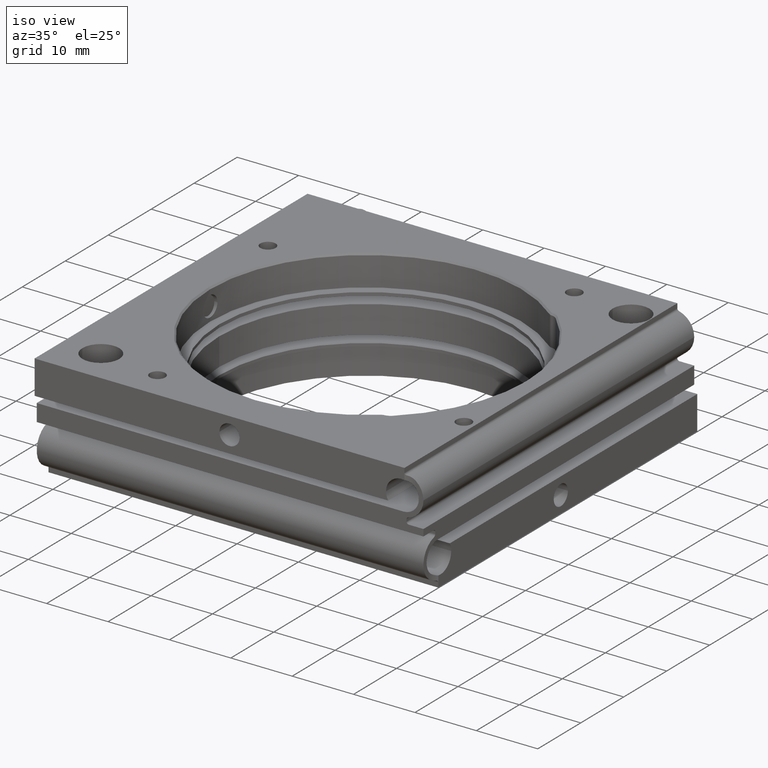
[diagram: clean part render]
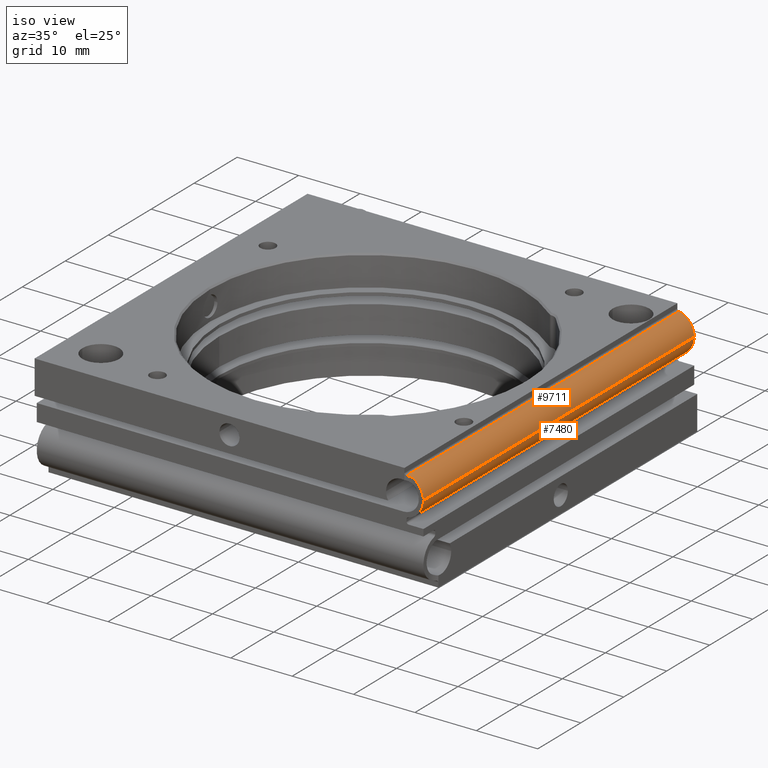
[diagram: same view with one multi-face feature highlighted, each face labeled with its STEP entity id]
A machine part, iso view. The highlighted faces form ONE feature: a constant-radius fillet chain: 2 tangent blend faces with common blend radius 3.25 mm. The faces share edges in the B-rep.
Their STEP definitions:
[1] entity #7480 (Cylinder):
#310 = DIRECTION ( 'NONE',  ( -1.000000000000000000, 1.334402673828313339E-16, 0.000000000000000000 ) ) ;
#797 = DIRECTION ( 'NONE',  ( 1.000000000000000000, -0.000000000000000000, -6.829619984160658046E-17 ) ) ;
#1029 = AXIS2_PLACEMENT_3D ( 'NONE', #5392, #310, #3337 ) ;
#1121 = CYLINDRICAL_SURFACE ( 'NONE', #11739, 3.249999999999999556 ) ;
#1199 = CARTESIAN_POINT ( 'NONE',  ( 31.24999999999998579, 1.591890292413144836, -28.76736111111112493 ) ) ;
#1591 = EDGE_CURVE ( 'NONE', #5785, #9956, #4426, .T. ) ;
#1854 = CARTESIAN_POINT ( 'NONE',  ( 31.24999999999998579, 4.749999999999999112, -31.25000000000001421 ) ) ;
#2014 = LINE ( 'NONE', #6143, #13291 ) ;
#2116 = AXIS2_PLACEMENT_3D ( 'NONE', #7124, #3935, #5986 ) ;
#2300 = CARTESIAN_POINT ( 'NONE',  ( -31.75000000000000000, 1.591890292413145724, -28.76736111111112493 ) ) ;
#2747 = CIRCLE ( 'NONE', #1029, 3.250000000000000000 ) ;
#3203 = VERTEX_POINT ( 'NONE', #8973 ) ;
#3337 = DIRECTION ( 'NONE',  ( 0.000000000000000000, -1.000000000000000000, 0.000000000000000000 ) ) ;
#3935 = DIRECTION ( 'NONE',  ( -1.000000000000000000, -0.000000000000000000, 6.829619984160658046E-17 ) ) ;
#4426 = LINE ( 'NONE', #9751, #10223 ) ;
#5123 = ORIENTED_EDGE ( 'NONE', *, *, #10150, .T. ) ;
#5392 = CARTESIAN_POINT ( 'NONE',  ( 31.24999999999998579, 4.749999999999999112, -28.00000000000001776 ) ) ;
#5785 = VERTEX_POINT ( 'NONE', #1199 ) ;
#5986 = DIRECTION ( 'NONE',  ( 0.000000000000000000, 0.000000000000000000, -1.000000000000000000 ) ) ;
#6076 = FACE_OUTER_BOUND ( 'NONE', #8925, .T. ) ;
#6143 = CARTESIAN_POINT ( 'NONE',  ( -31.75000000000000000, 4.749999999999999112, -31.25000000000001421 ) ) ;
#7124 = CARTESIAN_POINT ( 'NONE',  ( -31.75000000000000000, 4.749999999999999112, -28.00000000000001421 ) ) ;
#7480 = ADVANCED_FACE ( 'NONE', ( #6076 ), #1121, .T. ) ;
#8476 = CARTESIAN_POINT ( 'NONE',  ( -31.75000000000000000, 4.749999999999999112, -28.00000000000001421 ) ) ;
#8498 = ORIENTED_EDGE ( 'NONE', *, *, #8749, .T. ) ;
#8749 = EDGE_CURVE ( 'NONE', #3203, #12205, #2014, .T. ) ;
#8925 = EDGE_LOOP ( 'NONE', ( #9834, #8498, #5123, #11639 ) ) ;
#8973 = CARTESIAN_POINT ( 'NONE',  ( -31.75000000000000000, 4.749999999999999112, -31.25000000000001421 ) ) ;
#9542 = DIRECTION ( 'NONE',  ( 1.000000000000000000, -0.000000000000000000, -6.829619984160658046E-17 ) ) ;
#9751 = CARTESIAN_POINT ( 'NONE',  ( -31.75000000000000000, 1.591890292413145280, -28.76736111111112493 ) ) ;
#9815 = DIRECTION ( 'NONE',  ( -1.000000000000000000, 0.000000000000000000, 6.829619984160658046E-17 ) ) ;
#9834 = ORIENTED_EDGE ( 'NONE', *, *, #12182, .F. ) ;
#9956 = VERTEX_POINT ( 'NONE', #2300 ) ;
#10150 = EDGE_CURVE ( 'NONE', #12205, #5785, #2747, .T. ) ;
#10223 = VECTOR ( 'NONE', #9815, 1000.000000000000000 ) ;
#11639 = ORIENTED_EDGE ( 'NONE', *, *, #1591, .T. ) ;
#11739 = AXIS2_PLACEMENT_3D ( 'NONE', #8476, #9542, #12584 ) ;
#12182 = EDGE_CURVE ( 'NONE', #3203, #9956, #13108, .T. ) ;
#12205 = VERTEX_POINT ( 'NONE', #1854 ) ;
#12584 = DIRECTION ( 'NONE',  ( 0.000000000000000000, 0.000000000000000000, -1.000000000000000000 ) ) ;
#13108 = CIRCLE ( 'NONE', #2116, 3.249999999999999556 ) ;
#13291 = VECTOR ( 'NONE', #797, 1000.000000000000000 ) ;
[2] entity #9711 (Cylinder):
#167 = ORIENTED_EDGE ( 'NONE', *, *, #8749, .F. ) ;
#797 = DIRECTION ( 'NONE',  ( 1.000000000000000000, -0.000000000000000000, -6.829619984160658046E-17 ) ) ;
#1001 = ORIENTED_EDGE ( 'NONE', *, *, #6972, .T. ) ;
#1013 = CARTESIAN_POINT ( 'NONE',  ( 31.24999999999998579, 4.749999999999999112, -28.00000000000001776 ) ) ;
#1072 = CARTESIAN_POINT ( 'NONE',  ( 31.25000000000000000, 7.311737691489897273, -30.00000000000002132 ) ) ;
#1441 = DIRECTION ( 'NONE',  ( 1.000000000000000000, -0.000000000000000000, -6.829619984160658046E-17 ) ) ;
#1711 = B_SPLINE_CURVE_WITH_KNOTS ( 'NONE', 3,
 ( #10204, #12977, #3863, #7122, #12172, #4805 ),
 .UNSPECIFIED., .F., .F.,
 ( 4, 2, 4 ),
 ( 0.000000000000000000, 0.0007118922461806830373, 0.001423784492361366075 ),
 .UNSPECIFIED. ) ;
#1854 = CARTESIAN_POINT ( 'NONE',  ( 31.24999999999998579, 4.749999999999999112, -31.25000000000001421 ) ) ;
#2014 = LINE ( 'NONE', #6143, #13291 ) ;
#2111 = DIRECTION ( 'NONE',  ( 1.000000000000000000, -0.000000000000000000, -6.829619984160658046E-17 ) ) ;
#2698 = ORIENTED_EDGE ( 'NONE', *, *, #3520, .T. ) ;
#2740 = VECTOR ( 'NONE', #1441, 1000.000000000000000 ) ;
#2918 = CIRCLE ( 'NONE', #7245, 3.249999999999999556 ) ;
#2990 = CYLINDRICAL_SURFACE ( 'NONE', #6842, 3.249999999999999556 ) ;
#3097 = DIRECTION ( 'NONE',  ( -1.000000000000000000, 1.334402673828313339E-16, 0.000000000000000000 ) ) ;
#3203 = VERTEX_POINT ( 'NONE', #8973 ) ;
#3271 = CARTESIAN_POINT ( 'NONE',  ( -31.75000000000000000, 4.749999999999999112, -28.00000000000001421 ) ) ;
#3520 = EDGE_CURVE ( 'NONE', #12283, #10882, #10678, .T. ) ;
#3596 = CARTESIAN_POINT ( 'NONE',  ( -31.75000000000000000, 7.908109707586853609, -28.76736111111112493 ) ) ;
#3628 = ORIENTED_EDGE ( 'NONE', *, *, #10818, .T. ) ;
#3863 = CARTESIAN_POINT ( 'NONE',  ( 31.37706603401727889, 7.785977819579874115, -29.18337723049485177 ) ) ;
#4722 = ORIENTED_EDGE ( 'NONE', *, *, #7598, .F. ) ;
#4805 = CARTESIAN_POINT ( 'NONE',  ( 31.25000000000000000, 7.311737691489897273, -30.00000000000002132 ) ) ;
#5521 = DIRECTION ( 'NONE',  ( 0.000000000000000000, 0.000000000000000000, -1.000000000000000000 ) ) ;
#5581 = VERTEX_POINT ( 'NONE', #1072 ) ;
#6143 = CARTESIAN_POINT ( 'NONE',  ( -31.75000000000000000, 4.749999999999999112, -31.25000000000001421 ) ) ;
#6842 = AXIS2_PLACEMENT_3D ( 'NONE', #8129, #2111, #10456 ) ;
#6972 = EDGE_CURVE ( 'NONE', #5581, #12205, #8440, .T. ) ;
#7122 = CARTESIAN_POINT ( 'NONE',  ( 31.27141869312923816, 7.584533274308133954, -29.60716026191373373 ) ) ;
#7245 = AXIS2_PLACEMENT_3D ( 'NONE', #3271, #11635, #5521 ) ;
#7248 = FACE_OUTER_BOUND ( 'NONE', #12270, .T. ) ;
#7440 = CARTESIAN_POINT ( 'NONE',  ( -31.75000000000000000, 7.908109707586853609, -28.76736111111112493 ) ) ;
#7598 = EDGE_CURVE ( 'NONE', #12283, #3203, #2918, .T. ) ;
#8129 = CARTESIAN_POINT ( 'NONE',  ( -31.75000000000000000, 4.749999999999999112, -28.00000000000001421 ) ) ;
#8440 = CIRCLE ( 'NONE', #12318, 3.250000000000000000 ) ;
#8749 = EDGE_CURVE ( 'NONE', #3203, #12205, #2014, .T. ) ;
#8973 = CARTESIAN_POINT ( 'NONE',  ( -31.75000000000000000, 4.749999999999999112, -31.25000000000001421 ) ) ;
#9711 = ADVANCED_FACE ( 'NONE', ( #7248 ), #2990, .T. ) ;
#10204 = CARTESIAN_POINT ( 'NONE',  ( 31.57500543228292855, 7.908109707586851833, -28.76736111111112848 ) ) ;
#10456 = DIRECTION ( 'NONE',  ( 0.000000000000000000, 0.000000000000000000, -1.000000000000000000 ) ) ;
#10678 = LINE ( 'NONE', #3596, #2740 ) ;
#10818 = EDGE_CURVE ( 'NONE', #10882, #5581, #1711, .T. ) ;
#10882 = VERTEX_POINT ( 'NONE', #13116 ) ;
#11635 = DIRECTION ( 'NONE',  ( -1.000000000000000000, -0.000000000000000000, 6.829619984160658046E-17 ) ) ;
#12172 = CARTESIAN_POINT ( 'NONE',  ( 31.25000000000000000, 7.459889454570975076, -29.81023702222728744 ) ) ;
#12205 = VERTEX_POINT ( 'NONE', #1854 ) ;
#12226 = DIRECTION ( 'NONE',  ( 0.000000000000000000, -1.000000000000000000, 0.000000000000000000 ) ) ;
#12270 = EDGE_LOOP ( 'NONE', ( #167, #4722, #2698, #3628, #1001 ) ) ;
#12283 = VERTEX_POINT ( 'NONE', #7440 ) ;
#12318 = AXIS2_PLACEMENT_3D ( 'NONE', #1013, #3097, #12226 ) ;
#12977 = CARTESIAN_POINT ( 'NONE',  ( 31.45870090299695576, 7.858245202547762709, -28.97258075952403900 ) ) ;
#13116 = CARTESIAN_POINT ( 'NONE',  ( 31.57500543228292855, 7.908109707586851833, -28.76736111111112848 ) ) ;
#13291 = VECTOR ( 'NONE', #797, 1000.000000000000000 ) ;